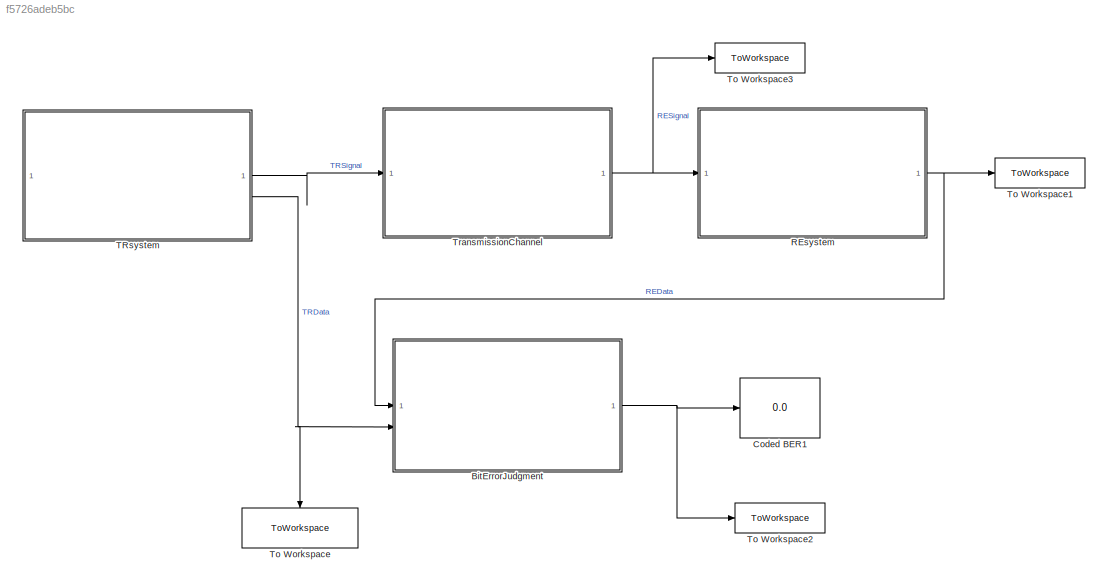
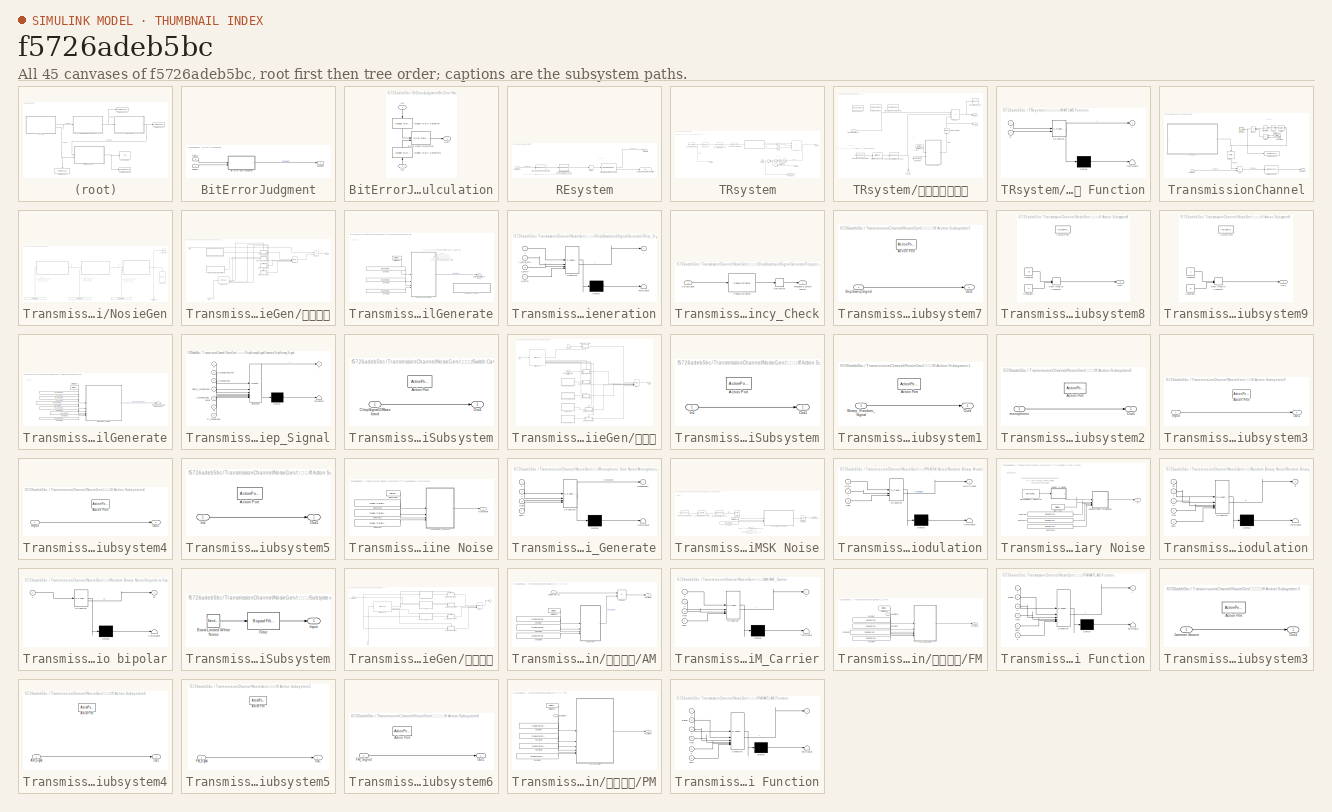
[diagram: thumbnail index - all 45 canvases of the model, root first then tree order]
MODEL slx_f5726adeb5bc
KIND model
CONFIG AbsTol = auto
CONFIG EnableMultiTasking = off
CONFIG FixedStep = auto
CONFIG InitFcn = Parameter_Initialize_1
CONFIG MaxStep = auto
CONFIG MinStep = auto
CONFIG RelTol = 1e-3
CONFIG SampleTimeConstraint = Unconstrained
CONFIG SolverName = VariableStepAuto
CONFIG StartTime = 0.0
CONFIG StopTime = 0.001
BLOCK [SubSystem] BitErrorJudgment
BLOCK [SubSystem] BitErrorJudgment/Bit Error Rate Calculation
BLOCK [Reference] BitErrorJudgment/Bit Error Rate Calculation/Error Rate Calculation  REF=commsink2/Error Rate
Calculation
  SourceBlock = commsink2/Error Rate\nCalculation
  SourceType = Error Rate Calculation
BLOCK [Inport] BitErrorJudgment/Bit Error Rate Calculation/In1
  NameLocation = right
BLOCK [Inport] BitErrorJudgment/Bit Error Rate Calculation/In2
  NameLocation = right
  Port = 2
BLOCK [Reference] BitErrorJudgment/Bit Error Rate Calculation/Integer to Bit Converter  REF=simulink/Logic and Bit
Operations/Integer to Bit
Converter
  LibrarySourceBlock = commutil2/Integer to Bit\nConverter
  NameLocation = right
  SourceBlock = simulink/Logic and Bit\nOperations/Integer to Bit\nConverter
  SourceType = Integer to Bit Converter
BLOCK [Reference] BitErrorJudgment/Bit Error Rate Calculation/Integer to Bit Converter1  REF=simulink/Logic and Bit
Operations/Integer to Bit
Converter
  LibrarySourceBlock = commutil2/Integer to Bit\nConverter
  NameLocation = right
  SourceBlock = simulink/Logic and Bit\nOperations/Integer to Bit\nConverter
  SourceType = Integer to Bit Converter
BLOCK [Outport] BitErrorJudgment/Bit Error Rate Calculation/Out1
  VectorParamsAs1DForOutWhenUnconnected = off
BLOCK [Outport] BitErrorJudgment/CodeBER
BLOCK [Inport] BitErrorJudgment/REData
BLOCK [Inport] BitErrorJudgment/TRData
  Port = 2
BLOCK [Display] Coded BER1
  Decimation = 1
BLOCK [SubSystem] REsystem
BLOCK [Delay] REsystem/Delay
  DelayLength = model.Parameters.RE.Delay.Sample_length
  InitialCondition = 0
  InputPortMap = u0
  InputProcessing = Columns as channels (frame based)
BLOCK [Reference] REsystem/Integer-Output RS Decoder1  REF=commblkcod2/Integer-Output
RS Decoder
  SourceBlock = commblkcod2/Integer-Output\nRS Decoder
  SourceType = Integer-Output RS Decoder
BLOCK [Outport] REsystem/REData
BLOCK [Inport] REsystem/RESignal
BLOCK [Reference] REsystem/Raised Cosine Receive Filter  REF=commfilt2/Raised Cosine
Receive Filter
  SourceBlock = commfilt2/Raised Cosine\nReceive Filter
  SourceType = Raised Cosine Receive Filter
BLOCK [Reference] REsystem/Rectangular QAM Demodulator Baseband  REF=commdigbbndam3/Rectangular QAM
Demodulator
Baseband
  SourceBlock = commdigbbndam3/Rectangular QAM\nDemodulator\nBaseband
  SourceType = Rectangular QAM Demodulator Baseband
BLOCK [Display] REsystem/Total Number of Corrected Errors
  Decimation = 1
  NameLocation = top
BLOCK [SubSystem] TRsystem
BLOCK [Sum] TRsystem/Add1
  IconShape = rectangular
  NameLocation = top
BLOCK [Buffer] TRsystem/Buffer7
  N = 1
  NameLocation = top
  OutputFrames = off
BLOCK [Math] TRsystem/Conj
  Operator = conj
BLOCK [Math] TRsystem/Conj1
  Operator = conj
BLOCK [Constant] TRsystem/Constant1
  NameLocation = top
  SampleTime = model.Parameters.TR.system_frame_speed
  Value = eps
BLOCK [DigitalClock] TRsystem/Digital Clock1
  NameLocation = top
  SampleTime = model.Parameters.TR.system_frame_speed
BLOCK [Product] TRsystem/Divide1
  Inputs = */
  NameLocation = top
BLOCK [Integrator] TRsystem/Integrator1
  NameLocation = top
BLOCK [Outport] TRsystem/Output
  Port = 2
BLOCK [Math] TRsystem/Power1
  NameLocation = top
  Operator = magnitude^2
BLOCK [Product] TRsystem/Product
  Inputs = 3
BLOCK [Reference] TRsystem/RS Encoder  REF=commblkcod2/Integer-Input
RS Encoder
  SourceBlock = commblkcod2/Integer-Input\nRS Encoder
  SourceType = Integer-Input RS Encoder
BLOCK [Reference] TRsystem/Raised Cosine Transmit Filter  REF=commfilt2/Raised Cosine
Transmit Filter
  SourceBlock = commfilt2/Raised Cosine\nTransmit Filter
  SourceType = Raised Cosine Transmit Filter
BLOCK [Reference] TRsystem/Random Integer Generator  REF=commrandsrc3/Random Integer
Generator
  SourceBlock = commrandsrc3/Random Integer\nGenerator
  SourceType = Random Integer Generator
BLOCK [Reference] TRsystem/Rectangular QAM Modulator Baseband  REF=commdigbbndam3/Rectangular QAM
Modulator
Baseband
  LibrarySourceBlock = commhdldigbbndam/Rectangular QAM\nModulator\nBaseband
  SourceBlock = commdigbbndam3/Rectangular QAM\nModulator\nBaseband
  SourceType = Rectangular QAM Modulator Baseband
BLOCK [Scope] TRsystem/Scope1
  Floating = off
  NameLocation = top
  NumInputPorts = 1
  ScopeSpecificationString = Simulink.scopes.TimeScopeBlockCfg('CurrentConfiguration', extmgr.ConfigurationSet(extmgr.Configuration('Core','General UI',true),extmgr.Configuration('Core','Source UI',true),extmgr.Configuration('Sources','WiredSimulink',true,'DataLoggingVariableName','ScopeData1'),extmgr.Configuration('Visuals','Time Domain',true,'SerializedDisplays',{struct('MinYLimReal','-0.00021','MaxYLimReal','0.00185','YLab...<+1395ch>
BLOCK [Outport] TRsystem/TRSignal
BLOCK [ToWorkspace] TRsystem/To Workspace
  FixptAsFi = on
  MaxDataPoints = inf
  SampleTime = -1
  SaveFormat = Timeseries
  VariableName = PowerEstimation
BLOCK [SubSystem] TRsystem/跳频和频谱搬移
BLOCK [Reference] TRsystem/跳频和频谱搬移/Baseband PLL  REF=commsynccomp2/Baseband
PLL
  Commented = on
  SourceBlock = commsynccomp2/Baseband\nPLL
  SourceType = Baseband PLL
BLOCK [Reference] TRsystem/跳频和频谱搬移/Bit to Integer Converter  REF=simulink/Logic and Bit
Operations/Bit to Integer
Converter
  SourceBlock = simulink/Logic and Bit\nOperations/Bit to Integer\nConverter
  SourceType = Bit to Integer Converter
BLOCK [Reference] TRsystem/跳频和频谱搬移/Charge Pump PLL  REF=commsynccomp2/Charge Pump
PLL
  Commented = on
  SourceBlock = commsynccomp2/Charge Pump\nPLL
  SourceType = Charge Pump PLL
BLOCK [Constant] TRsystem/跳频和频谱搬移/Constant
  Value = model.Parameters.TR.Constant.fc
BLOCK [DigitalClock] TRsystem/跳频和频谱搬移/Digital Clock
  SampleTime = model.Parameters.TR.Digital_Clock.fc_Ts
BLOCK [Reference] TRsystem/跳频和频谱搬移/Linearized Baseband PLL  REF=commsynccomp2/Linearized Baseband
PLL
  Commented = on
  SourceBlock = commsynccomp2/Linearized Baseband\nPLL
  SourceType = Linearized Baseband PLL
BLOCK [Reference] TRsystem/跳频和频谱搬移/M-FSK Modulator Baseband1  REF=commdigbbndfm2/M-FSK
Modulator
Baseband
  SourceBlock = commdigbbndfm2/M-FSK\nModulator\nBaseband
  SourceType = M-FSK Modulator Baseband
  UserDataPersistent = on
BLOCK [SubSystem] TRsystem/跳频和频谱搬移/MATLAB Function
  ErrorFcn = Stateflow.Translate.translate
  LibrarySourceBlock = simulink/User-Defined\nFunctions/MATLAB Function
  PermitHierarchicalResolution = ExplicitOnly
  SFBlockType = MATLAB Function
  TreatAsAtomicUnit = on
BLOCK [Demux] TRsystem/跳频和频谱搬移/MATLAB Function/ Demux 
  Outputs = 1
BLOCK [S-Function] TRsystem/跳频和频谱搬移/MATLAB Function/ SFunction 
  EnableBusSupport = on
  FunctionName = sf_sfun
  PortCounts = [2 2]
  SFcnIsStateOwnerBlock = off
  SFunctionDeploymentMode = off
  Tag = Stateflow S-Function 1
BLOCK [Terminator] TRsystem/跳频和频谱搬移/MATLAB Function/ Terminator 
BLOCK [Inport] TRsystem/跳频和频谱搬移/MATLAB Function/fc
  Port = 2
BLOCK [Inport] TRsystem/跳频和频谱搬移/MATLAB Function/t
BLOCK [Outport] TRsystem/跳频和频谱搬移/MATLAB Function/y
BLOCK [Inport] TRsystem/跳频和频谱搬移/Modulated Signal
BLOCK [Reference] TRsystem/跳频和频谱搬移/PN Sequence Generator1  REF=commseqgen3/PN Sequence
Generator
  SourceBlock = commseqgen3/PN Sequence\nGenerator
  SourceType = PN Sequence Generator
BLOCK [Outport] TRsystem/跳频和频谱搬移/PN_Out
  NameLocation = left
  Port = 2
BLOCK [Outport] TRsystem/跳频和频谱搬移/PN_Out1
  Port = 3
BLOCK [Product] TRsystem/跳频和频谱搬移/Product
  Inputs = 3
BLOCK [Outport] TRsystem/跳频和频谱搬移/RF Signal
BLOCK [RateTransition] TRsystem/跳频和频谱搬移/Rate Transition1
  NameLocation = right
BLOCK [SpectrumAnalyzer] TRsystem/跳频和频谱搬移/Spectrum Analyzer
  Commented = on
  ScopeSpecificationString = spbscopes.SpectrumAnalyzerBlockCfg('CurrentConfiguration', extmgr.ConfigurationSet(extmgr.Configuration('Core','General UI',true),extmgr.Configuration('Core','Source UI',true),extmgr.Configuration('Sources','WiredSimulink',true),extmgr.Configuration('Visuals','Spectrum',true,'AxesProperties',struct('Color',{[0 0 0],[0 0 0]},'XColor',{[0.686274509803922 0.686274509803922 0.686274509803922],[0.68627...<+3361ch>
BLOCK [ToWorkspace] To Workspace
  FixptAsFi = on
  MaxDataPoints = inf
  NameLocation = left
  SampleTime = -1
  SaveFormat = Timeseries
  VariableName = TRData
BLOCK [ToWorkspace] To Workspace1
  FixptAsFi = on
  MaxDataPoints = inf
  SampleTime = -1
  SaveFormat = Timeseries
  VariableName = REData
BLOCK [ToWorkspace] To Workspace2
  FixptAsFi = on
  MaxDataPoints = inf
  SampleTime = -1
  SaveFormat = Timeseries
  VariableName = CodeBER
BLOCK [ToWorkspace] To Workspace3
  FixptAsFi = on
  MaxDataPoints = inf
  SampleTime = -1
  SaveFormat = Timeseries
  VariableName = RESignal
BLOCK [SubSystem] TransmissionChannel
BLOCK [Reference] TransmissionChannel/AWGN Channel  REF=commchan3/AWGN
Channel
  SourceBlock = commchan3/AWGN\nChannel
  SourceType = AWGN Channel
  UserDataPersistent = on
BLOCK [Sum] TransmissionChannel/Add
  IconShape = rectangular
BLOCK [Sum] TransmissionChannel/Add1
  IconShape = rectangular
  NameLocation = top
BLOCK [Buffer] TransmissionChannel/Buffer
  N = model.Parameters.TR.rolloff_later_data_length
  NameLocation = left
  OutputFrames = off
BLOCK [Buffer] TransmissionChannel/Buffer7
  N = 1
  NameLocation = top
  OutputFrames = off
BLOCK [Constant] TransmissionChannel/Constant1
  NameLocation = top
  SampleTime = model.Parameters.TR.system_frame_speed
  Value = eps
BLOCK [DigitalClock] TransmissionChannel/Digital Clock1
  NameLocation = top
  SampleTime = model.Parameters.NoiseGen.NoiseTs
BLOCK [Product] TransmissionChannel/Divide1
  Inputs = */
  NameLocation = top
BLOCK [Integrator] TransmissionChannel/Integrator1
  NameLocation = top
BLOCK [SubSystem] TransmissionChannel/NosieGen
BLOCK [Outport] TransmissionChannel/NosieGen/Jamming_Signal_Output
  NameLocation = top
BLOCK [SpectrumAnalyzer] TransmissionChannel/NosieGen/Spectrum Analyzer
  Commented = on
  NameLocation = right
  ScopeSpecificationString = spbscopes.SpectrumAnalyzerBlockCfg('CurrentConfiguration', extmgr.ConfigurationSet(extmgr.Configuration('Core','General UI',true),extmgr.Configuration('Core','Source UI',true),extmgr.Configuration('Sources','WiredSimulink',true),extmgr.Configuration('Visuals','Spectrum',true,'AxesProperties',struct('Color',{[0 0 0],[0 0 0]},'XColor',{[0.686274509803922 0.686274509803922 0.686274509803922],[0.68627...<+1973ch>
BLOCK [ToWorkspace] TransmissionChannel/NosieGen/To Workspace
  FixptAsFi = on
  MaxDataPoints = inf
  NameLocation = left
  SampleTime = -1
  SaveFormat = Timeseries
  VariableName = Noise
BLOCK [SubSystem] TransmissionChannel/NosieGen/干扰方式
BLOCK [SubSystem] TransmissionChannel/NosieGen/干扰方式/ChirpBasebandSignalGenerate
  AttributesFormatString = 线性调频模块：线性调频公式(y=exp(2*pi*(f_min*t+0.5*k_chirp*t^2)))\n输入参数：\n1. f_min,为线性调频信号的起始频率\n2.f_max为线性调频信号的终止频率\n3.T_chirp为线性调频信号的调频时间\n斜率k_sweep = (f_min-f_max)/T_chirp
BLOCK [Outport] TransmissionChannel/NosieGen/干扰方式/ChirpBasebandSignalGenerate/ChirpSignalOfBaseband
BLOCK [SubSystem] TransmissionChannel/NosieGen/干扰方式/ChirpBasebandSignalGenerate/Chirp_Signal_Generation
  ErrorFcn = Stateflow.Translate.translate
  LibrarySourceBlock = simulink/User-Defined\nFunctions/MATLAB Function
  PermitHierarchicalResolution = ExplicitOnly
  SFBlockType = MATLAB Function
  TreatAsAtomicUnit = on
BLOCK [Demux] TransmissionChannel/NosieGen/干扰方式/ChirpBasebandSignalGenerate/Chirp_Signal_Generation/ Demux 
  Outputs = 1
BLOCK [S-Function] TransmissionChannel/NosieGen/干扰方式/ChirpBasebandSignalGenerate/Chirp_Signal_Generation/ SFunction 
  EnableBusSupport = on
  FunctionName = sf_sfun
  PortCounts = [4 2]
  SFcnIsStateOwnerBlock = off
  SFunctionDeploymentMode = off
  Tag = Stateflow S-Function 2
BLOCK [Terminator] TransmissionChannel/NosieGen/干扰方式/ChirpBasebandSignalGenerate/Chirp_Signal_Generation/ Terminator 
BLOCK [Inport] TransmissionChannel/NosieGen/干扰方式/ChirpBasebandSignalGenerate/Chirp_Signal_Generation/T_chirp
  Port = 3
BLOCK [Inport] TransmissionChannel/NosieGen/干扰方式/ChirpBasebandSignalGenerate/Chirp_Signal_Generation/f_chirp_min
  Port = 2
BLOCK [Inport] TransmissionChannel/NosieGen/干扰方式/ChirpBasebandSignalGenerate/Chirp_Signal_Generation/k_chirp
  Port = 4
BLOCK [Inport] TransmissionChannel/NosieGen/干扰方式/ChirpBasebandSignalGenerate/Chirp_Signal_Generation/t
BLOCK [Outport] TransmissionChannel/NosieGen/干扰方式/ChirpBasebandSignalGenerate/Chirp_Signal_Generation/y
BLOCK [Constant] TransmissionChannel/NosieGen/干扰方式/ChirpBasebandSignalGenerate/Constant
  Value = model.Parameters.NoiseGen.Jamming.LinearSweepFmin
BLOCK [Constant] TransmissionChannel/NosieGen/干扰方式/ChirpBasebandSignalGenerate/Constant1
  Value = model.Parameters.NoiseGen.Jamming.LinearSweepT
BLOCK [Constant] TransmissionChannel/NosieGen/干扰方式/ChirpBasebandSignalGenerate/Constant2
  Value = model.Parameters.NoiseGen.Jamming.LinearSweepK
BLOCK [DigitalClock] TransmissionChannel/NosieGen/干扰方式/ChirpBasebandSignalGenerate/Digital Clock
  SampleTime = model.Parameters.NoiseGen.NoiseTs
BLOCK [SubSystem] TransmissionChannel/NosieGen/干扰方式/ChirpBasebandSignalGenerate/Frequency_Check
  Commented = on
BLOCK [Inport] TransmissionChannel/NosieGen/干扰方式/ChirpBasebandSignalGenerate/Frequency_Check/ChirpSignal
BLOCK [Derivative] TransmissionChannel/NosieGen/干扰方式/ChirpBasebandSignalGenerate/Frequency_Check/Derivative
BLOCK [Outport] TransmissionChannel/NosieGen/干扰方式/ChirpBasebandSignalGenerate/Frequency_Check/FrequencyConversionLine
BLOCK [Reference] TransmissionChannel/NosieGen/干扰方式/ChirpBasebandSignalGenerate/Frequency_Check/Phase Extractor  REF=dspsigops/Phase Extractor
  SourceBlock = dspsigops/Phase Extractor
  SourceType = dsp.simulink.PhaseExtractor
BLOCK [SubSystem] TransmissionChannel/NosieGen/干扰方式/If Action Subsystem7
  TreatAsAtomicUnit = on
BLOCK [ActionPort] TransmissionChannel/NosieGen/干扰方式/If Action Subsystem7/Action Port
  ActionPortLabel = case [ 2 ]:
BLOCK [Outport] TransmissionChannel/NosieGen/干扰方式/If Action Subsystem7/Out1
BLOCK [Inport] TransmissionChannel/NosieGen/干扰方式/If Action Subsystem7/StepSweepSignal
BLOCK [SubSystem] TransmissionChannel/NosieGen/干扰方式/If Action Subsystem8
  TreatAsAtomicUnit = on
BLOCK [ActionPort] TransmissionChannel/NosieGen/干扰方式/If Action Subsystem8/Action Port
  ActionPortLabel = case [ 3 ]:
BLOCK [Constant] TransmissionChannel/NosieGen/干扰方式/If Action Subsystem8/Constant
  Value = 10
BLOCK [Constant] TransmissionChannel/NosieGen/干扰方式/If Action Subsystem8/Constant1
  Value = 0
BLOCK [Outport] TransmissionChannel/NosieGen/干扰方式/If Action Subsystem8/Out1
BLOCK [RealImagToComplex] TransmissionChannel/NosieGen/干扰方式/If Action Subsystem8/Real-Imag to Complex
BLOCK [SubSystem] TransmissionChannel/NosieGen/干扰方式/If Action Subsystem9
  TreatAsAtomicUnit = on
BLOCK [ActionPort] TransmissionChannel/NosieGen/干扰方式/If Action Subsystem9/Action Port
  ActionPortLabel = default:
BLOCK [Constant] TransmissionChannel/NosieGen/干扰方式/If Action Subsystem9/Constant
BLOCK [Constant] TransmissionChannel/NosieGen/干扰方式/If Action Subsystem9/Constant1
  Value = 0
BLOCK [Outport] TransmissionChannel/NosieGen/干扰方式/If Action Subsystem9/Out1
BLOCK [RealImagToComplex] TransmissionChannel/NosieGen/干扰方式/If Action Subsystem9/Real-Imag to Complex
BLOCK [Inport] TransmissionChannel/NosieGen/干扰方式/In1
BLOCK [Inport] TransmissionChannel/NosieGen/干扰方式/In2
  Port = 2
BLOCK [Merge] TransmissionChannel/NosieGen/干扰方式/Merge2
  Inputs = 4
BLOCK [Outport] TransmissionChannel/NosieGen/干扰方式/Out1
BLOCK [Product] TransmissionChannel/NosieGen/干扰方式/Product
BLOCK [SubSystem] TransmissionChannel/NosieGen/干扰方式/StepSweepSignalGenerate
BLOCK [Constant] TransmissionChannel/NosieGen/干扰方式/StepSweepSignalGenerate/Constant
  Value = model.Parameters.NoiseGen.NoiseTs
BLOCK [Constant] TransmissionChannel/NosieGen/干扰方式/StepSweepSignalGenerate/Constant1
  Value = model.Parameters.NoiseGen.Jamming.LinearSweepFmin
BLOCK [Constant] TransmissionChannel/NosieGen/干扰方式/StepSweepSignalGenerate/Constant2
  Value = model.Parameters.NoiseGen.Jamming.StepSweepT
BLOCK [Constant] TransmissionChannel/NosieGen/干扰方式/StepSweepSignalGenerate/Constant3
  Value = model.Parameters.NoiseGen.Jamming.StepSweepDeltaFstep
BLOCK [Constant] TransmissionChannel/NosieGen/干扰方式/StepSweepSignalGenerate/Constant4
  Value = model.Parameters.NoiseGen.Jamming.StepSweepTDwell
BLOCK [Constant] TransmissionChannel/NosieGen/干扰方式/StepSweepSignalGenerate/Constant5
  Value = model.Parameters.NoiseGen.Jamming.StepSweepN
BLOCK [DigitalClock] TransmissionChannel/NosieGen/干扰方式/StepSweepSignalGenerate/Digital Clock
  SampleTime = model.Parameters.NoiseGen.NoiseTs
BLOCK [Outport] TransmissionChannel/NosieGen/干扰方式/StepSweepSignalGenerate/StepSweepSignalOfBaseband
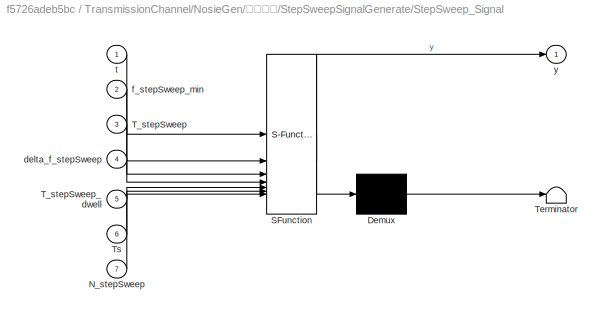
BLOCK [SubSystem] TransmissionChannel/NosieGen/干扰方式/StepSweepSignalGenerate/StepSweep_Signal
  ErrorFcn = Stateflow.Translate.translate
  LibrarySourceBlock = simulink/User-Defined\nFunctions/MATLAB Function
  PermitHierarchicalResolution = ExplicitOnly
  SFBlockType = MATLAB Function
  TreatAsAtomicUnit = on
BLOCK [Demux] TransmissionChannel/NosieGen/干扰方式/StepSweepSignalGenerate/StepSweep_Signal/ Demux 
  Outputs = 1
BLOCK [S-Function] TransmissionChannel/NosieGen/干扰方式/StepSweepSignalGenerate/StepSweep_Signal/ SFunction 
  EnableBusSupport = on
  FunctionName = sf_sfun
  PortCounts = [7 2]
  SFcnIsStateOwnerBlock = off
  SFunctionDeploymentMode = off
  Tag = Stateflow S-Function 8
BLOCK [Terminator] TransmissionChannel/NosieGen/干扰方式/StepSweepSignalGenerate/StepSweep_Signal/ Terminator 
BLOCK [Inport] TransmissionChannel/NosieGen/干扰方式/StepSweepSignalGenerate/StepSweep_Signal/N_stepSweep
  Port = 7
BLOCK [Inport] TransmissionChannel/NosieGen/干扰方式/StepSweepSignalGenerate/StepSweep_Signal/T_stepSweep
  Port = 3
BLOCK [Inport] TransmissionChannel/NosieGen/干扰方式/StepSweepSignalGenerate/StepSweep_Signal/T_stepSweep_dwell
  Port = 5
BLOCK [Inport] TransmissionChannel/NosieGen/干扰方式/StepSweepSignalGenerate/StepSweep_Signal/Ts
  Port = 6
BLOCK [Inport] TransmissionChannel/NosieGen/干扰方式/StepSweepSignalGenerate/StepSweep_Signal/delta_f_stepSweep
  Port = 4
BLOCK [Inport] TransmissionChannel/NosieGen/干扰方式/StepSweepSignalGenerate/StepSweep_Signal/f_stepSweep_min
  Port = 2
BLOCK [Inport] TransmissionChannel/NosieGen/干扰方式/StepSweepSignalGenerate/StepSweep_Signal/t
BLOCK [Outport] TransmissionChannel/NosieGen/干扰方式/StepSweepSignalGenerate/StepSweep_Signal/y
BLOCK [SubSystem] TransmissionChannel/NosieGen/干扰方式/Switch Case Action Subsystem
  TreatAsAtomicUnit = on
BLOCK [ActionPort] TransmissionChannel/NosieGen/干扰方式/Switch Case Action Subsystem/Action Port
  ActionPortLabel = case [ 1 ]:
BLOCK [Inport] TransmissionChannel/NosieGen/干扰方式/Switch Case Action Subsystem/ChirpSignalOfBaseband
BLOCK [Outport] TransmissionChannel/NosieGen/干扰方式/Switch Case Action Subsystem/Out1
BLOCK [SwitchCase] TransmissionChannel/NosieGen/干扰方式/Switch Case2
  CaseConditions = {1,2,3}
BLOCK [Constant] TransmissionChannel/NosieGen/干扰方式控制位
  NameLocation = right
  SampleTime = Inf
  Value = model.Parameters.NoiseGen.Control.Jamming
BLOCK [SubSystem] TransmissionChannel/NosieGen/干扰源
BLOCK [Reference] TransmissionChannel/NosieGen/干扰源/Band-Limited White Noise  REF=simulink/Sources/Band-Limited
White Noise
  SourceBlock = simulink/Sources/Band-Limited\nWhite Noise
  SourceType = Band-Limited White Noise.
BLOCK [Constant] TransmissionChannel/NosieGen/干扰源/Constant
  SampleTime = model.Parameters.NoiseGen.NoiseTs
  Value = 0
BLOCK [SubSystem] TransmissionChannel/NosieGen/干扰源/If Action Subsystem
  TreatAsAtomicUnit = on
BLOCK [ActionPort] TransmissionChannel/NosieGen/干扰源/If Action Subsystem/Action Port
  ActionPortLabel = case [ 1 ]:
BLOCK [Inport] TransmissionChannel/NosieGen/干扰源/If Action Subsystem/In1
BLOCK [Outport] TransmissionChannel/NosieGen/干扰源/If Action Subsystem/Out1
BLOCK [SubSystem] TransmissionChannel/NosieGen/干扰源/If Action Subsystem1
  TreatAsAtomicUnit = on
BLOCK [ActionPort] TransmissionChannel/NosieGen/干扰源/If Action Subsystem1/Action Port
  ActionPortLabel = case [ 2 ]:
BLOCK [Inport] TransmissionChannel/NosieGen/干扰源/If Action Subsystem1/Binary_Random_Signal
BLOCK [Outport] TransmissionChannel/NosieGen/干扰源/If Action Subsystem1/Out1
BLOCK [SubSystem] TransmissionChannel/NosieGen/干扰源/If Action Subsystem2
  TreatAsAtomicUnit = on
BLOCK [ActionPort] TransmissionChannel/NosieGen/干扰源/If Action Subsystem2/Action Port
  ActionPortLabel = case [ 3 ]:
BLOCK [Outport] TransmissionChannel/NosieGen/干扰源/If Action Subsystem2/Out1
BLOCK [Inport] TransmissionChannel/NosieGen/干扰源/If Action Subsystem2/monophonic
BLOCK [SubSystem] TransmissionChannel/NosieGen/干扰源/If Action Subsystem3
  TreatAsAtomicUnit = on
BLOCK [ActionPort] TransmissionChannel/NosieGen/干扰源/If Action Subsystem3/Action Port
  ActionPortLabel = case [ 4 ]:
BLOCK [Inport] TransmissionChannel/NosieGen/干扰源/If Action Subsystem3/Input
BLOCK [Outport] TransmissionChannel/NosieGen/干扰源/If Action Subsystem3/Out1
BLOCK [SubSystem] TransmissionChannel/NosieGen/干扰源/If Action Subsystem4
  TreatAsAtomicUnit = on
BLOCK [ActionPort] TransmissionChannel/NosieGen/干扰源/If Action Subsystem4/Action Port
  ActionPortLabel = case [ 5 ]:
BLOCK [Inport] TransmissionChannel/NosieGen/干扰源/If Action Subsystem4/Input
BLOCK [Outport] TransmissionChannel/NosieGen/干扰源/If Action Subsystem4/Out1
BLOCK [SubSystem] TransmissionChannel/NosieGen/干扰源/If Action Subsystem5
  TreatAsAtomicUnit = on
BLOCK [ActionPort] TransmissionChannel/NosieGen/干扰源/If Action Subsystem5/Action Port
  ActionPortLabel = case [ 0 ]:
BLOCK [Inport] TransmissionChannel/NosieGen/干扰源/If Action Subsystem5/In1
BLOCK [Outport] TransmissionChannel/NosieGen/干扰源/If Action Subsystem5/Out1
BLOCK [Inport] TransmissionChannel/NosieGen/干扰源/In1
BLOCK [Merge] TransmissionChannel/NosieGen/干扰源/Merge
  Inputs = 6
BLOCK [SubSystem] TransmissionChannel/NosieGen/干扰源/Monophonic Sine Noise
BLOCK [Constant] TransmissionChannel/NosieGen/干扰源/Monophonic Sine Noise/Constant
  Value = model.Parameters.NoiseGen.SineNoisePhi0
BLOCK [Constant] TransmissionChannel/NosieGen/干扰源/Monophonic Sine Noise/Constant1
  Value = model.Parameters.NoiseGen.SineNoiseF
BLOCK [Constant] TransmissionChannel/NosieGen/干扰源/Monophonic Sine Noise/Constant2
  Value = model.Parameters.NoiseGen.SineNoiseA
BLOCK [DigitalClock] TransmissionChannel/NosieGen/干扰源/Monophonic Sine Noise/Digital Clock
  SampleTime = model.Parameters.NoiseGen.NoiseTs
BLOCK [SubSystem] TransmissionChannel/NosieGen/干扰源/Monophonic Sine Noise/Monophonic_Generate
  ErrorFcn = Stateflow.Translate.translate
  LibrarySourceBlock = simulink/User-Defined\nFunctions/MATLAB Function
  PermitHierarchicalResolution = ExplicitOnly
  SFBlockType = MATLAB Function
  TreatAsAtomicUnit = on
BLOCK [Demux] TransmissionChannel/NosieGen/干扰源/Monophonic Sine Noise/Monophonic_Generate/ Demux 
  Outputs = 1
BLOCK [S-Function] TransmissionChannel/NosieGen/干扰源/Monophonic Sine Noise/Monophonic_Generate/ SFunction 
  EnableBusSupport = on
  FunctionName = sf_sfun
  PortCounts = [4 2]
  SFcnIsStateOwnerBlock = off
  SFunctionDeploymentMode = off
  Tag = Stateflow S-Function 3
BLOCK [Terminator] TransmissionChannel/NosieGen/干扰源/Monophonic Sine Noise/Monophonic_Generate/ Terminator 
BLOCK [Inport] TransmissionChannel/NosieGen/干扰源/Monophonic Sine Noise/Monophonic_Generate/A
  Port = 2
BLOCK [Inport] TransmissionChannel/NosieGen/干扰源/Monophonic Sine Noise/Monophonic_Generate/freq
  Port = 3
BLOCK [Outport] TransmissionChannel/NosieGen/干扰源/Monophonic Sine Noise/Monophonic_Generate/monophonic
BLOCK [Inport] TransmissionChannel/NosieGen/干扰源/Monophonic Sine Noise/Monophonic_Generate/phi0
  Port = 4
BLOCK [Inport] TransmissionChannel/NosieGen/干扰源/Monophonic Sine Noise/Monophonic_Generate/t
BLOCK [Outport] TransmissionChannel/NosieGen/干扰源/Monophonic Sine Noise/monophonic
BLOCK [Outport] TransmissionChannel/NosieGen/干扰源/Out1
BLOCK [SubSystem] TransmissionChannel/NosieGen/干扰源/PN MSK Noise
BLOCK [Buffer] TransmissionChannel/NosieGen/干扰源/PN MSK Noise/Buffer
  N = 1
  OutputFrames = off
BLOCK [ComplexToRealImag] TransmissionChannel/NosieGen/干扰源/PN MSK Noise/Complex to Real-Imag
BLOCK [Constant] TransmissionChannel/NosieGen/干扰源/PN MSK Noise/Constant
  Value = model.Parameters.NoiseGen.PNMSKF
BLOCK [DigitalClock] TransmissionChannel/NosieGen/干扰源/PN MSK Noise/Digital Clock
  SampleTime = model.Parameters.NoiseGen.NoiseTs
BLOCK [Reference] TransmissionChannel/NosieGen/干扰源/PN MSK Noise/MSK Modulator Baseband  REF=commdigbbndcpm2/MSK
Modulator
Baseband
  SourceBlock = commdigbbndcpm2/MSK\nModulator\nBaseband
  SourceType = MSK Modulator Baseband
  UserDataPersistent = on
BLOCK [Outport] TransmissionChannel/NosieGen/干扰源/PN MSK Noise/MSKSignal
  OutDataTypeStr = double
BLOCK [Reference] TransmissionChannel/NosieGen/干扰源/PN MSK Noise/PN Sequence Generator  REF=commseqgen3/PN Sequence
Generator
  LibrarySourceBlock = commhdlsource/PN Sequence\nGenerator
  SourceBlock = commseqgen3/PN Sequence\nGenerator
  SourceType = PN Sequence Generator
BLOCK [SubSystem] TransmissionChannel/NosieGen/干扰源/PN MSK Noise/Random Binary Modulation
  ErrorFcn = Stateflow.Translate.translate
  LibrarySourceBlock = simulink/User-Defined\nFunctions/MATLAB Function
  PermitHierarchicalResolution = ExplicitOnly
  SFBlockType = MATLAB Function
  TreatAsAtomicUnit = on
BLOCK [Demux] TransmissionChannel/NosieGen/干扰源/PN MSK Noise/Random Binary Modulation/ Demux 
  Outputs = 1
BLOCK [S-Function] TransmissionChannel/NosieGen/干扰源/PN MSK Noise/Random Binary Modulation/ SFunction 
  EnableBusSupport = on
  FunctionName = sf_sfun
  PortCounts = [3 2]
  SFcnIsStateOwnerBlock = off
  SFunctionDeploymentMode = off
  Tag = Stateflow S-Function 9
BLOCK [Terminator] TransmissionChannel/NosieGen/干扰源/PN MSK Noise/Random Binary Modulation/ Terminator 
BLOCK [Outport] TransmissionChannel/NosieGen/干扰源/PN MSK Noise/Random Binary Modulation/MSKSignal
BLOCK [Inport] TransmissionChannel/NosieGen/干扰源/PN MSK Noise/Random Binary Modulation/cita_k
BLOCK [Inport] TransmissionChannel/NosieGen/干扰源/PN MSK Noise/Random Binary Modulation/freq
  Port = 3
BLOCK [Inport] TransmissionChannel/NosieGen/干扰源/PN MSK Noise/Random Binary Modulation/t
  Port = 2
BLOCK [Reference] TransmissionChannel/NosieGen/干扰源/PN MSK Noise/Unipolar to Bipolar Converter1  REF=commutil2/Unipolar to
Bipolar
Converter
  SourceBlock = commutil2/Unipolar to\nBipolar\nConverter
  SourceType = Unipolar to Bipolar Converter
BLOCK [SubSystem] TransmissionChannel/NosieGen/干扰源/Random Binary Noise
BLOCK [Reference] TransmissionChannel/NosieGen/干扰源/Random Binary Noise/Bernoulli Binary Generator  REF=commrandsrc3/Bernoulli Binary
Generator
  SourceBlock = commrandsrc3/Bernoulli Binary\nGenerator
  SourceType = Bernoulli Binary Generator
BLOCK [Constant] TransmissionChannel/NosieGen/干扰源/Random Binary Noise/Constant
  Value = model.Parameters.NoiseGen.RandBPFA
BLOCK [Constant] TransmissionChannel/NosieGen/干扰源/Random Binary Noise/Constant1
  Value = model.Parameters.NoiseGen.RandBPFF
BLOCK [Constant] TransmissionChannel/NosieGen/干扰源/Random Binary Noise/Constant2
  Value = model.Parameters.NoiseGen.RandBPFPhi0
BLOCK [DigitalClock] TransmissionChannel/NosieGen/干扰源/Random Binary Noise/Digital Clock
  SampleTime = model.Parameters.NoiseGen.NoiseTs
BLOCK [Outport] TransmissionChannel/NosieGen/干扰源/Random Binary Noise/Jt
BLOCK [SubSystem] TransmissionChannel/NosieGen/干扰源/Random Binary Noise/Random Binary Modulation
  ErrorFcn = Stateflow.Translate.translate
  LibrarySourceBlock = simulink/User-Defined\nFunctions/MATLAB Function
  PermitHierarchicalResolution = ExplicitOnly
  SFBlockType = MATLAB Function
  TreatAsAtomicUnit = on
BLOCK [Demux] TransmissionChannel/NosieGen/干扰源/Random Binary Noise/Random Binary Modulation/ Demux 
  Outputs = 1
BLOCK [S-Function] TransmissionChannel/NosieGen/干扰源/Random Binary Noise/Random Binary Modulation/ SFunction 
  EnableBusSupport = on
  FunctionName = sf_sfun
  PortCounts = [5 2]
  SFcnIsStateOwnerBlock = off
  SFunctionDeploymentMode = off
  Tag = Stateflow S-Function 6
BLOCK [Terminator] TransmissionChannel/NosieGen/干扰源/Random Binary Noise/Random Binary Modulation/ Terminator 
BLOCK [Inport] TransmissionChannel/NosieGen/干扰源/Random Binary Noise/Random Binary Modulation/A
  Port = 3
BLOCK [Inport] TransmissionChannel/NosieGen/干扰源/Random Binary Noise/Random Binary Modulation/Jn
BLOCK [Outport] TransmissionChannel/NosieGen/干扰源/Random Binary Noise/Random Binary Modulation/Jt
BLOCK [Inport] TransmissionChannel/NosieGen/干扰源/Random Binary Noise/Random Binary Modulation/freq
  Port = 4
BLOCK [Inport] TransmissionChannel/NosieGen/干扰源/Random Binary Noise/Random Binary Modulation/phi0
  Port = 5
BLOCK [Inport] TransmissionChannel/NosieGen/干扰源/Random Binary Noise/Random Binary Modulation/t
  Port = 2
BLOCK [SubSystem] TransmissionChannel/NosieGen/干扰源/Random Binary Noise/Unipolar to bipolar
  ErrorFcn = Stateflow.Translate.translate
  LibrarySourceBlock = simulink/User-Defined\nFunctions/MATLAB Function
  PermitHierarchicalResolution = ExplicitOnly
  SFBlockType = MATLAB Function
  TreatAsAtomicUnit = on
BLOCK [Demux] TransmissionChannel/NosieGen/干扰源/Random Binary Noise/Unipolar to bipolar/ Demux 
  Outputs = 1
BLOCK [S-Function] TransmissionChannel/NosieGen/干扰源/Random Binary Noise/Unipolar to bipolar/ SFunction 
  EnableBusSupport = on
  FunctionName = sf_sfun
  PortCounts = [1 2]
  SFcnIsStateOwnerBlock = off
  SFunctionDeploymentMode = off
  Tag = Stateflow S-Function 7
BLOCK [Terminator] TransmissionChannel/NosieGen/干扰源/Random Binary Noise/Unipolar to bipolar/ Terminator 
BLOCK [Outport] TransmissionChannel/NosieGen/干扰源/Random Binary Noise/Unipolar to bipolar/Jn
BLOCK [Inport] TransmissionChannel/NosieGen/干扰源/Random Binary Noise/Unipolar to bipolar/u
BLOCK [SubSystem] TransmissionChannel/NosieGen/干扰源/Subsystem
BLOCK [Reference] TransmissionChannel/NosieGen/干扰源/Subsystem/Band-Limited White Noise  REF=simulink/Sources/Band-Limited
White Noise
  SourceBlock = simulink/Sources/Band-Limited\nWhite Noise
  SourceType = Band-Limited White Noise.
BLOCK [Reference] TransmissionChannel/NosieGen/干扰源/Subsystem/Filter  REF=dsparch4/Biquad Filter
  SourceBlock = dsparch4/Biquad Filter
  SourceType = Biquad Filter
  Tag = BlockMethodSubSystem
  UserDataPersistent = on
BLOCK [Outport] TransmissionChannel/NosieGen/干扰源/Subsystem/Input
BLOCK [SwitchCase] TransmissionChannel/NosieGen/干扰源/Switch Case
  CaseConditions = {0,1,2,3,4,5}
BLOCK [Constant] TransmissionChannel/NosieGen/干扰源控制位
  SampleTime = Inf
  Value = model.Parameters.NoiseGen.Control.Source
BLOCK [SubSystem] TransmissionChannel/NosieGen/调制方式
BLOCK [SubSystem] TransmissionChannel/NosieGen/调制方式/AM
BLOCK [SubSystem] TransmissionChannel/NosieGen/调制方式/AM/AM_Carrier
  ErrorFcn = Stateflow.Translate.translate
  LibrarySourceBlock = simulink/User-Defined\nFunctions/MATLAB Function
  PermitHierarchicalResolution = ExplicitOnly
  SFBlockType = MATLAB Function
  TreatAsAtomicUnit = on
BLOCK [Demux] TransmissionChannel/NosieGen/调制方式/AM/AM_Carrier/ Demux 
  Outputs = 1
BLOCK [S-Function] TransmissionChannel/NosieGen/调制方式/AM/AM_Carrier/ SFunction 
  EnableBusSupport = on
  FunctionName = sf_sfun
  PortCounts = [4 2]
  SFcnIsStateOwnerBlock = off
  SFunctionDeploymentMode = off
  Tag = Stateflow S-Function 4
BLOCK [Terminator] TransmissionChannel/NosieGen/调制方式/AM/AM_Carrier/ Terminator 
BLOCK [Inport] TransmissionChannel/NosieGen/调制方式/AM/AM_Carrier/A
  Port = 2
BLOCK [Inport] TransmissionChannel/NosieGen/调制方式/AM/AM_Carrier/freq
  Port = 3
BLOCK [Inport] TransmissionChannel/NosieGen/调制方式/AM/AM_Carrier/phi0
  Port = 4
BLOCK [Inport] TransmissionChannel/NosieGen/调制方式/AM/AM_Carrier/t
BLOCK [Outport] TransmissionChannel/NosieGen/调制方式/AM/AM_Carrier/y
BLOCK [Outport] TransmissionChannel/NosieGen/调制方式/AM/AM_Signal
BLOCK [Constant] TransmissionChannel/NosieGen/调制方式/AM/Constant
  Value = model.Parameters.NoiseGen.Modulator.AMA
BLOCK [Constant] TransmissionChannel/NosieGen/调制方式/AM/Constant1
  Value = model.Parameters.NoiseGen.Modulator.AMF
BLOCK [Constant] TransmissionChannel/NosieGen/调制方式/AM/Constant2
  Value = model.Parameters.NoiseGen.Modulator.AMPhi0
BLOCK [DigitalClock] TransmissionChannel/NosieGen/调制方式/AM/Digital Clock
  SampleTime = model.Parameters.NoiseGen.NoiseTs
BLOCK [Inport] TransmissionChannel/NosieGen/调制方式/AM/Jammer Source
BLOCK [Product] TransmissionChannel/NosieGen/调制方式/AM/Product
BLOCK [SubSystem] TransmissionChannel/NosieGen/调制方式/FM
BLOCK [Constant] TransmissionChannel/NosieGen/调制方式/FM/Constant
  Value = model.Parameters.NoiseGen.Modulator.FMA
BLOCK [Constant] TransmissionChannel/NosieGen/调制方式/FM/Constant1
  Value = model.Parameters.NoiseGen.Modulator.FMF
BLOCK [Constant] TransmissionChannel/NosieGen/调制方式/FM/Constant2
  Value = model.Parameters.NoiseGen.Modulator.FMPhi0
BLOCK [Constant] TransmissionChannel/NosieGen/调制方式/FM/Constant3
  Value = model.Parameters.NoiseGen.Modulator.FMK
BLOCK [DigitalClock] TransmissionChannel/NosieGen/调制方式/FM/Digital Clock
  SampleTime = model.Parameters.NoiseGen.NoiseTs
BLOCK [Outport] TransmissionChannel/NosieGen/调制方式/FM/FM_Signal
BLOCK [Inport] TransmissionChannel/NosieGen/调制方式/FM/InputSignal
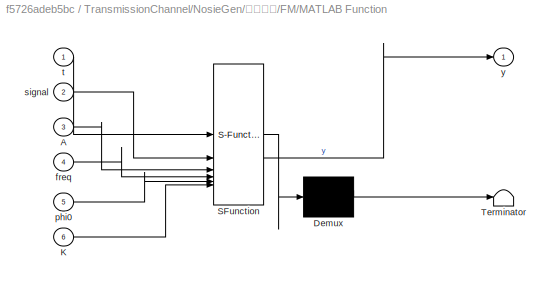
BLOCK [SubSystem] TransmissionChannel/NosieGen/调制方式/FM/MATLAB Function
  ErrorFcn = Stateflow.Translate.translate
  LibrarySourceBlock = simulink/User-Defined\nFunctions/MATLAB Function
  PermitHierarchicalResolution = ExplicitOnly
  SFBlockType = MATLAB Function
  TreatAsAtomicUnit = on
BLOCK [Demux] TransmissionChannel/NosieGen/调制方式/FM/MATLAB Function/ Demux 
  Outputs = 1
BLOCK [S-Function] TransmissionChannel/NosieGen/调制方式/FM/MATLAB Function/ SFunction 
  EnableBusSupport = on
  FunctionName = sf_sfun
  PortCounts = [6 2]
  SFcnIsStateOwnerBlock = off
  SFunctionDeploymentMode = off
  Tag = Stateflow S-Function 5
BLOCK [Terminator] TransmissionChannel/NosieGen/调制方式/FM/MATLAB Function/ Terminator 
BLOCK [Inport] TransmissionChannel/NosieGen/调制方式/FM/MATLAB Function/A
  Port = 3
BLOCK [Inport] TransmissionChannel/NosieGen/调制方式/FM/MATLAB Function/K
  Port = 6
BLOCK [Inport] TransmissionChannel/NosieGen/调制方式/FM/MATLAB Function/freq
  Port = 4
BLOCK [Inport] TransmissionChannel/NosieGen/调制方式/FM/MATLAB Function/phi0
  Port = 5
BLOCK [Inport] TransmissionChannel/NosieGen/调制方式/FM/MATLAB Function/signal
  Port = 2
BLOCK [Inport] TransmissionChannel/NosieGen/调制方式/FM/MATLAB Function/t
BLOCK [Outport] TransmissionChannel/NosieGen/调制方式/FM/MATLAB Function/y
BLOCK [SubSystem] TransmissionChannel/NosieGen/调制方式/If Action Subsystem3
  TreatAsAtomicUnit = on
BLOCK [ActionPort] TransmissionChannel/NosieGen/调制方式/If Action Subsystem3/Action Port
  ActionPortLabel = default:
BLOCK [Inport] TransmissionChannel/NosieGen/调制方式/If Action Subsystem3/Jammer Source
BLOCK [Outport] TransmissionChannel/NosieGen/调制方式/If Action Subsystem3/Out1
BLOCK [SubSystem] TransmissionChannel/NosieGen/调制方式/If Action Subsystem4
  TreatAsAtomicUnit = on
BLOCK [Inport] TransmissionChannel/NosieGen/调制方式/If Action Subsystem4/AM_Signal
BLOCK [ActionPort] TransmissionChannel/NosieGen/调制方式/If Action Subsystem4/Action Port
  ActionPortLabel = case [ 1 ]:
BLOCK [Outport] TransmissionChannel/NosieGen/调制方式/If Action Subsystem4/Out1
BLOCK [SubSystem] TransmissionChannel/NosieGen/调制方式/If Action Subsystem5
  TreatAsAtomicUnit = on
BLOCK [ActionPort] TransmissionChannel/NosieGen/调制方式/If Action Subsystem5/Action Port
  ActionPortLabel = case [ 2 ]:
BLOCK [Outport] TransmissionChannel/NosieGen/调制方式/If Action Subsystem5/Out1
BLOCK [Inport] TransmissionChannel/NosieGen/调制方式/If Action Subsystem5/PM_Signal
BLOCK [SubSystem] TransmissionChannel/NosieGen/调制方式/If Action Subsystem6
  TreatAsAtomicUnit = on
BLOCK [ActionPort] TransmissionChannel/NosieGen/调制方式/If Action Subsystem6/Action Port
  ActionPortLabel = case [ 3 ]:
BLOCK [Inport] TransmissionChannel/NosieGen/调制方式/If Action Subsystem6/FM_Signal
BLOCK [Outport] TransmissionChannel/NosieGen/调制方式/If Action Subsystem6/Out1
BLOCK [Inport] TransmissionChannel/NosieGen/调制方式/In2
  NameLocation = right
  Port = 2
BLOCK [Inport] TransmissionChannel/NosieGen/调制方式/InputSignal
BLOCK [Merge] TransmissionChannel/NosieGen/调制方式/Merge1
  Inputs = 4
BLOCK [Outport] TransmissionChannel/NosieGen/调制方式/Out1
BLOCK [SubSystem] TransmissionChannel/NosieGen/调制方式/PM
BLOCK [Constant] TransmissionChannel/NosieGen/调制方式/PM/Constant
  Value = model.Parameters.NoiseGen.Modulator.PMA
BLOCK [Constant] TransmissionChannel/NosieGen/调制方式/PM/Constant1
  Value = model.Parameters.NoiseGen.Modulator.PMF
BLOCK [Constant] TransmissionChannel/NosieGen/调制方式/PM/Constant2
  Value = model.Parameters.NoiseGen.Modulator.PMPhi0
BLOCK [Constant] TransmissionChannel/NosieGen/调制方式/PM/Constant3
  Value = model.Parameters.NoiseGen.Modulator.PMK
BLOCK [DigitalClock] TransmissionChannel/NosieGen/调制方式/PM/Digital Clock
  SampleTime = model.Parameters.NoiseGen.NoiseTs
BLOCK [Inport] TransmissionChannel/NosieGen/调制方式/PM/InputSignal
BLOCK [SubSystem] TransmissionChannel/NosieGen/调制方式/PM/MATLAB Function
  ErrorFcn = Stateflow.Translate.translate
  LibrarySourceBlock = simulink/User-Defined\nFunctions/MATLAB Function
  PermitHierarchicalResolution = ExplicitOnly
  SFBlockType = MATLAB Function
  TreatAsAtomicUnit = on
BLOCK [Demux] TransmissionChannel/NosieGen/调制方式/PM/MATLAB Function/ Demux 
  Outputs = 1
BLOCK [S-Function] TransmissionChannel/NosieGen/调制方式/PM/MATLAB Function/ SFunction 
  EnableBusSupport = on
  FunctionName = sf_sfun
  PortCounts = [6 2]
  SFcnIsStateOwnerBlock = off
  SFunctionDeploymentMode = off
  Tag = Stateflow S-Function 10
BLOCK [Terminator] TransmissionChannel/NosieGen/调制方式/PM/MATLAB Function/ Terminator 
BLOCK [Inport] TransmissionChannel/NosieGen/调制方式/PM/MATLAB Function/A
  Port = 3
BLOCK [Inport] TransmissionChannel/NosieGen/调制方式/PM/MATLAB Function/K
  Port = 5
BLOCK [Inport] TransmissionChannel/NosieGen/调制方式/PM/MATLAB Function/freq
  Port = 4
BLOCK [Inport] TransmissionChannel/NosieGen/调制方式/PM/MATLAB Function/phi0
  Port = 6
BLOCK [Inport] TransmissionChannel/NosieGen/调制方式/PM/MATLAB Function/signal
  Port = 2
BLOCK [Inport] TransmissionChannel/NosieGen/调制方式/PM/MATLAB Function/t
BLOCK [Outport] TransmissionChannel/NosieGen/调制方式/PM/MATLAB Function/y
BLOCK [Outport] TransmissionChannel/NosieGen/调制方式/PM/PM_Signal
BLOCK [SwitchCase] TransmissionChannel/NosieGen/调制方式/Switch Case1
  CaseConditions = {1,2,3}
BLOCK [Constant] TransmissionChannel/NosieGen/调制方式控制位
  NameLocation = right
  SampleTime = Inf
  Value = model.Parameters.NoiseGen.Control.Modulator
BLOCK [Math] TransmissionChannel/Power1
  NameLocation = top
  Operator = magnitude^2
BLOCK [Outport] TransmissionChannel/RESignal
BLOCK [Scope] TransmissionChannel/Scope1
  Floating = off
  NameLocation = top
  NumInputPorts = 1
  ScopeSpecificationString = Simulink.scopes.TimeScopeBlockCfg('CurrentConfiguration', extmgr.ConfigurationSet(extmgr.Configuration('Core','General UI',true),extmgr.Configuration('Core','Source UI',true),extmgr.Configuration('Sources','WiredSimulink',true,'DataLoggingVariableName','ScopeData1'),extmgr.Configuration('Visuals','Time Domain',true,'SerializedDisplays',{struct('MinYLimReal','541749963.40758','MaxYLimReal','7120610...<+1503ch>
BLOCK [Inport] TransmissionChannel/TRSignal
BLOCK [ToWorkspace] TransmissionChannel/To Workspace
  FixptAsFi = on
  MaxDataPoints = inf
  SampleTime = -1
  SaveFormat = Timeseries
  VariableName = NoisePowerEstimation
ANNOTATION REsystem: 接收端解码
ANNOTATION REsystem: 注意此处的延时设置，使得RS解码对齐信源部分，并在后续的码元比较时舍弃前三个编码周期(帧周期)的比特位
ANNOTATION TRsystem: 功率估计部分
ANNOTATION TRsystem: 加入了RS编码的16QAM调制，三路输出分别为基带码元的bit序列、经16QAM调制后信号的实部和虚部
ANNOTATION TRsystem/跳频和频谱搬移: 产生跳频序列，并生成基带跳频，跳频间隔是1MHz,跳频范围是[0.5MHz,7.5MHz]
ANNOTATION TRsystem/跳频和频谱搬移: 本地载波 ; 1MHz
ANNOTATION TRsystem/跳频和频谱搬移: 跳频基带信号
ANNOTATION TRsystem/跳频和频谱搬移: 载波
ANNOTATION TransmissionChannel: 功率估计部分
ANNOTATION TransmissionChannel/NosieGen: 干扰方式
ANNOTATION TransmissionChannel/NosieGen: 干扰方式模块功能： 由调制方式控制位来控制调制方式，控制位变化范围是[0-4] 控制位==0的时候，调制方式模块不工作 控制位==1的时候，是线性跳频干扰 控制位==2的时候，是步进跳频干扰 控制位不在上面集合范围的时候，警告
ANNOTATION TransmissionChannel/NosieGen: 干扰源
ANNOTATION TransmissionChannel/NosieGen: 干扰源模块功能： 由干扰源控制位来控制干扰源的波形，控制变换范围是[1-3] 控制位==1的时候，输出高斯白噪声 控制位==2的时候，输出随机二元码调制噪声 控制位==3的时候，输出正弦波 控制位不在上面的集合的时候，没有输出
ANNOTATION TransmissionChannel/NosieGen: 调制方式
ANNOTATION TransmissionChannel/NosieGen: 调制方式模块功能： 由调制方式控制位来控制调制方式，控制位变化范围是[0-4] 控制位==0的时候，调制方式模块不工作 控制位==1的时候，通过AM 控制位==2的时候，通过PM 控制位==3的时候，通过FM 控制位==4的时候，通过增益15 控制位不在上面集合范围的时候，警告
ANNOTATION TransmissionChannel/NosieGen/干扰方式/ChirpBasebandSignalGenerate: 线性调频模块：线性调频公式(y=exp(2*pi*(fmin*t+0.5*k_chirp*t^2))) 输入参数： 1.fmin,为线性调频信号的起始频率 2.fmax为线性调频信号的终止频率 3.T_chirp为线性调频信号的调频时间 斜率k_sweep = (f_min-f_max)/T_chirp
ANNOTATION TransmissionChannel/NosieGen/干扰方式/ChirpBasebandSignalGenerate: 线性调频模块
ANNOTATION TransmissionChannel/NosieGen/干扰方式/StepSweepSignalGenerate: 步进调频模块
ANNOTATION TransmissionChannel/NosieGen/干扰源/PN MSK Noise: MSK模块： MSK的公式: y = exp(2*pi*fc*t+pi*ak*t/(2Ts)+phi_k) 输入参数： 1. fc:为MSK的中心频率 2. ak:为MSK的第k码元值，数值[-1或者+1] 3. Ts:为MSK的码元周期 4. phi_k:为MSK的第k个码元的修正相位 5. phi_0:为MSK的初始相位
ANNOTATION TransmissionChannel/NosieGen/干扰源/PN MSK Noise: MSK模块
ANNOTATION TransmissionChannel/NosieGen/干扰源/Random Binary Noise: 改模块采用的是概率为贝努利分布的随机二进制数，随机二元码调制噪声的公式如下： Jt = Am*Jn*cos(2*pi*fj*t+phi0) 本质上是数字调相信号，相位翻转180°
ANNOTATION TransmissionChannel/NosieGen/干扰源/Random Binary Noise: 随机二进制调制噪声
LINE BitErrorJudgment/Bit Error Rate Calculation/Error Rate Calculation:1 -> BitErrorJudgment/Bit Error Rate Calculation/Out1:1
LINE BitErrorJudgment/Bit Error Rate Calculation/In1:1 -> BitErrorJudgment/Bit Error Rate Calculation/Integer to Bit Converter:1
LINE BitErrorJudgment/Bit Error Rate Calculation/In2:1 -> BitErrorJudgment/Bit Error Rate Calculation/Integer to Bit Converter1:1
LINE BitErrorJudgment/Bit Error Rate Calculation/Integer to Bit Converter1:1 -> BitErrorJudgment/Bit Error Rate Calculation/Error Rate Calculation:2
LINE BitErrorJudgment/Bit Error Rate Calculation/Integer to Bit Converter:1 -> BitErrorJudgment/Bit Error Rate Calculation/Error Rate Calculation:1
LINE BitErrorJudgment/Bit Error Rate Calculation:1 -> BitErrorJudgment/CodeBER:1
LINE BitErrorJudgment/REData:1 -> BitErrorJudgment/Bit Error Rate Calculation:2
LINE BitErrorJudgment/TRData:1 -> BitErrorJudgment/Bit Error Rate Calculation:1
NET BitErrorJudgment:1 -> Coded BER1:1, To Workspace2:1
LINE REsystem/Delay:1 -> REsystem/Integer-Output RS Decoder1:1
LINE REsystem/Integer-Output RS Decoder1:1 -> REsystem/REData:1
LINE REsystem/Integer-Output RS Decoder1:2 -> REsystem/Total Number of Corrected Errors:1
LINE REsystem/RESignal:1 -> REsystem/Raised Cosine Receive Filter:1
LINE REsystem/Raised Cosine Receive Filter:1 -> REsystem/Rectangular QAM Demodulator Baseband:1
LINE REsystem/Rectangular QAM Demodulator Baseband:1 -> REsystem/Delay:1
NET REsystem:1 -> BitErrorJudgment:1, To Workspace1:1
LINE TRsystem/Add1:1 -> TRsystem/Divide1:2
LINE TRsystem/Buffer7:1 -> TRsystem/Power1:1
LINE TRsystem/Conj1:1 -> TRsystem/Product:3
LINE TRsystem/Conj:1 -> TRsystem/Product:2
LINE TRsystem/Constant1:1 -> TRsystem/Add1:2
LINE TRsystem/Digital Clock1:1 -> TRsystem/Add1:1
NET TRsystem/Divide1:1 -> TRsystem/Scope1:1, TRsystem/To Workspace:1
LINE TRsystem/Integrator1:1 -> TRsystem/Divide1:1
LINE TRsystem/Power1:1 -> TRsystem/Integrator1:1
NET TRsystem/Product:1 -> TRsystem/Buffer7:1, TRsystem/TRSignal:1
LINE TRsystem/RS Encoder:1 -> TRsystem/Rectangular QAM Modulator Baseband:1
LINE TRsystem/Raised Cosine Transmit Filter:1 -> TRsystem/跳频和频谱搬移:1
NET TRsystem/Random Integer Generator:1 -> TRsystem/Output:1, TRsystem/RS Encoder:1
LINE TRsystem/Rectangular QAM Modulator Baseband:1 -> TRsystem/Raised Cosine Transmit Filter:1
LINE TRsystem/跳频和频谱搬移/Bit to Integer Converter:1 -> TRsystem/跳频和频谱搬移/M-FSK Modulator Baseband1:1
LINE TRsystem/跳频和频谱搬移/Constant:1 -> TRsystem/跳频和频谱搬移/MATLAB Function:2
LINE TRsystem/跳频和频谱搬移/Digital Clock:1 -> TRsystem/跳频和频谱搬移/MATLAB Function:1
NET TRsystem/跳频和频谱搬移/M-FSK Modulator Baseband1:1 -> TRsystem/跳频和频谱搬移/PN_Out:1, TRsystem/跳频和频谱搬移/Product:2
LINE TRsystem/跳频和频谱搬移/MATLAB Function:1 -> TRsystem/跳频和频谱搬移/Rate Transition1:1
LINE TRsystem/跳频和频谱搬移/Modulated Signal:1 -> TRsystem/跳频和频谱搬移/Product:1
LINE TRsystem/跳频和频谱搬移/PN Sequence Generator1:1 -> TRsystem/跳频和频谱搬移/Bit to Integer Converter:1
NET TRsystem/跳频和频谱搬移/Product:1 -> TRsystem/跳频和频谱搬移/RF Signal:1, TRsystem/跳频和频谱搬移/Spectrum Analyzer:1
NET TRsystem/跳频和频谱搬移/Rate Transition1:1 -> TRsystem/跳频和频谱搬移/PN_Out1:1, TRsystem/跳频和频谱搬移/Product:3
LINE TRsystem/跳频和频谱搬移:1 -> TRsystem/Product:1
LINE TRsystem/跳频和频谱搬移:2 -> TRsystem/Conj:1
LINE TRsystem/跳频和频谱搬移:3 -> TRsystem/Conj1:1
LINE TRsystem:1 -> TransmissionChannel:1
NET TRsystem:2 -> BitErrorJudgment:2, To Workspace:1
LINE TransmissionChannel/AWGN Channel:1 -> TransmissionChannel/RESignal:1
LINE TransmissionChannel/Add1:1 -> TransmissionChannel/Divide1:2
LINE TransmissionChannel/Add:1 -> TransmissionChannel/AWGN Channel:1
LINE TransmissionChannel/Buffer7:1 -> TransmissionChannel/Power1:1
LINE TransmissionChannel/Buffer:1 -> TransmissionChannel/Add:1
LINE TransmissionChannel/Constant1:1 -> TransmissionChannel/Add1:2
LINE TransmissionChannel/Digital Clock1:1 -> TransmissionChannel/Add1:1
NET TransmissionChannel/Divide1:1 -> TransmissionChannel/Scope1:1, TransmissionChannel/To Workspace:1
LINE TransmissionChannel/Integrator1:1 -> TransmissionChannel/Divide1:1
LINE TransmissionChannel/NosieGen/干扰方式/ChirpBasebandSignalGenerate/Chirp_Signal_Generation:1 -> TransmissionChannel/NosieGen/干扰方式/ChirpBasebandSignalGenerate/ChirpSignalOfBaseband:1
LINE TransmissionChannel/NosieGen/干扰方式/ChirpBasebandSignalGenerate/Constant1:1 -> TransmissionChannel/NosieGen/干扰方式/ChirpBasebandSignalGenerate/Chirp_Signal_Generation:3
LINE TransmissionChannel/NosieGen/干扰方式/ChirpBasebandSignalGenerate/Constant2:1 -> TransmissionChannel/NosieGen/干扰方式/ChirpBasebandSignalGenerate/Chirp_Signal_Generation:4
LINE TransmissionChannel/NosieGen/干扰方式/ChirpBasebandSignalGenerate/Constant:1 -> TransmissionChannel/NosieGen/干扰方式/ChirpBasebandSignalGenerate/Chirp_Signal_Generation:2
LINE TransmissionChannel/NosieGen/干扰方式/ChirpBasebandSignalGenerate/Digital Clock:1 -> TransmissionChannel/NosieGen/干扰方式/ChirpBasebandSignalGenerate/Chirp_Signal_Generation:1
LINE TransmissionChannel/NosieGen/干扰方式/ChirpBasebandSignalGenerate/Frequency_Check/ChirpSignal:1 -> TransmissionChannel/NosieGen/干扰方式/ChirpBasebandSignalGenerate/Frequency_Check/Phase Extractor:1
LINE TransmissionChannel/NosieGen/干扰方式/ChirpBasebandSignalGenerate/Frequency_Check/Derivative:1 -> TransmissionChannel/NosieGen/干扰方式/ChirpBasebandSignalGenerate/Frequency_Check/FrequencyConversionLine:1
LINE TransmissionChannel/NosieGen/干扰方式/ChirpBasebandSignalGenerate/Frequency_Check/Phase Extractor:1 -> TransmissionChannel/NosieGen/干扰方式/ChirpBasebandSignalGenerate/Frequency_Check/Derivative:1
LINE TransmissionChannel/NosieGen/干扰方式/ChirpBasebandSignalGenerate:1 -> TransmissionChannel/NosieGen/干扰方式/Switch Case Action Subsystem:1
LINE TransmissionChannel/NosieGen/干扰方式/If Action Subsystem7/StepSweepSignal:1 -> TransmissionChannel/NosieGen/干扰方式/If Action Subsystem7/Out1:1
LINE TransmissionChannel/NosieGen/干扰方式/If Action Subsystem7:1 -> TransmissionChannel/NosieGen/干扰方式/Merge2:2
LINE TransmissionChannel/NosieGen/干扰方式/If Action Subsystem8/Constant1:1 -> TransmissionChannel/NosieGen/干扰方式/If Action Subsystem8/Real-Imag to Complex:2
LINE TransmissionChannel/NosieGen/干扰方式/If Action Subsystem8/Constant:1 -> TransmissionChannel/NosieGen/干扰方式/If Action Subsystem8/Real-Imag to Complex:1
LINE TransmissionChannel/NosieGen/干扰方式/If Action Subsystem8/Real-Imag to Complex:1 -> TransmissionChannel/NosieGen/干扰方式/If Action Subsystem8/Out1:1
LINE TransmissionChannel/NosieGen/干扰方式/If Action Subsystem8:1 -> TransmissionChannel/NosieGen/干扰方式/Merge2:3
LINE TransmissionChannel/NosieGen/干扰方式/If Action Subsystem9/Constant1:1 -> TransmissionChannel/NosieGen/干扰方式/If Action Subsystem9/Real-Imag to Complex:2
LINE TransmissionChannel/NosieGen/干扰方式/If Action Subsystem9/Constant:1 -> TransmissionChannel/NosieGen/干扰方式/If Action Subsystem9/Real-Imag to Complex:1
LINE TransmissionChannel/NosieGen/干扰方式/If Action Subsystem9/Real-Imag to Complex:1 -> TransmissionChannel/NosieGen/干扰方式/If Action Subsystem9/Out1:1
LINE TransmissionChannel/NosieGen/干扰方式/If Action Subsystem9:1 -> TransmissionChannel/NosieGen/干扰方式/Merge2:4
LINE TransmissionChannel/NosieGen/干扰方式/In1:1 -> TransmissionChannel/NosieGen/干扰方式/Product:1
LINE TransmissionChannel/NosieGen/干扰方式/In2:1 -> TransmissionChannel/NosieGen/干扰方式/Switch Case2:1
LINE TransmissionChannel/NosieGen/干扰方式/Merge2:1 -> TransmissionChannel/NosieGen/干扰方式/Product:2
LINE TransmissionChannel/NosieGen/干扰方式/Product:1 -> TransmissionChannel/NosieGen/干扰方式/Out1:1
LINE TransmissionChannel/NosieGen/干扰方式/StepSweepSignalGenerate/Constant1:1 -> TransmissionChannel/NosieGen/干扰方式/StepSweepSignalGenerate/StepSweep_Signal:2
LINE TransmissionChannel/NosieGen/干扰方式/StepSweepSignalGenerate/Constant2:1 -> TransmissionChannel/NosieGen/干扰方式/StepSweepSignalGenerate/StepSweep_Signal:3
LINE TransmissionChannel/NosieGen/干扰方式/StepSweepSignalGenerate/Constant3:1 -> TransmissionChannel/NosieGen/干扰方式/StepSweepSignalGenerate/StepSweep_Signal:4
LINE TransmissionChannel/NosieGen/干扰方式/StepSweepSignalGenerate/Constant4:1 -> TransmissionChannel/NosieGen/干扰方式/StepSweepSignalGenerate/StepSweep_Signal:5
LINE TransmissionChannel/NosieGen/干扰方式/StepSweepSignalGenerate/Constant:1 -> TransmissionChannel/NosieGen/干扰方式/StepSweepSignalGenerate/StepSweep_Signal:6
LINE TransmissionChannel/NosieGen/干扰方式/StepSweepSignalGenerate/Digital Clock:1 -> TransmissionChannel/NosieGen/干扰方式/StepSweepSignalGenerate/StepSweep_Signal:1
LINE TransmissionChannel/NosieGen/干扰方式/StepSweepSignalGenerate/StepSweep_Signal:1 -> TransmissionChannel/NosieGen/干扰方式/StepSweepSignalGenerate/StepSweepSignalOfBaseband:1
LINE TransmissionChannel/NosieGen/干扰方式/StepSweepSignalGenerate:1 -> TransmissionChannel/NosieGen/干扰方式/If Action Subsystem7:1
LINE TransmissionChannel/NosieGen/干扰方式/Switch Case Action Subsystem/ChirpSignalOfBaseband:1 -> TransmissionChannel/NosieGen/干扰方式/Switch Case Action Subsystem/Out1:1
LINE TransmissionChannel/NosieGen/干扰方式/Switch Case Action Subsystem:1 -> TransmissionChannel/NosieGen/干扰方式/Merge2:1
LINE TransmissionChannel/NosieGen/干扰方式/Switch Case2:1 -> TransmissionChannel/NosieGen/干扰方式/Switch Case Action Subsystem:ifaction
LINE TransmissionChannel/NosieGen/干扰方式/Switch Case2:2 -> TransmissionChannel/NosieGen/干扰方式/If Action Subsystem7:ifaction
LINE TransmissionChannel/NosieGen/干扰方式/Switch Case2:3 -> TransmissionChannel/NosieGen/干扰方式/If Action Subsystem8:ifaction
LINE TransmissionChannel/NosieGen/干扰方式/Switch Case2:4 -> TransmissionChannel/NosieGen/干扰方式/If Action Subsystem9:ifaction
NET TransmissionChannel/NosieGen/干扰方式:1 -> TransmissionChannel/NosieGen/Jamming_Signal_Output:1, TransmissionChannel/NosieGen/Spectrum Analyzer:1, TransmissionChannel/NosieGen/To Workspace:1
LINE TransmissionChannel/NosieGen/干扰方式控制位:1 -> TransmissionChannel/NosieGen/干扰方式:2
LINE TransmissionChannel/NosieGen/干扰源/Band-Limited White Noise:1 -> TransmissionChannel/NosieGen/干扰源/If Action Subsystem:1
LINE TransmissionChannel/NosieGen/干扰源/Constant:1 -> TransmissionChannel/NosieGen/干扰源/If Action Subsystem5:1
LINE TransmissionChannel/NosieGen/干扰源/If Action Subsystem/In1:1 -> TransmissionChannel/NosieGen/干扰源/If Action Subsystem/Out1:1
LINE TransmissionChannel/NosieGen/干扰源/If Action Subsystem1/Binary_Random_Signal:1 -> TransmissionChannel/NosieGen/干扰源/If Action Subsystem1/Out1:1
LINE TransmissionChannel/NosieGen/干扰源/If Action Subsystem1:1 -> TransmissionChannel/NosieGen/干扰源/Merge:3
LINE TransmissionChannel/NosieGen/干扰源/If Action Subsystem2/monophonic:1 -> TransmissionChannel/NosieGen/干扰源/If Action Subsystem2/Out1:1
LINE TransmissionChannel/NosieGen/干扰源/If Action Subsystem2:1 -> TransmissionChannel/NosieGen/干扰源/Merge:4
LINE TransmissionChannel/NosieGen/干扰源/If Action Subsystem3/Input:1 -> TransmissionChannel/NosieGen/干扰源/If Action Subsystem3/Out1:1
LINE TransmissionChannel/NosieGen/干扰源/If Action Subsystem3:1 -> TransmissionChannel/NosieGen/干扰源/Merge:5
LINE TransmissionChannel/NosieGen/干扰源/If Action Subsystem4/Input:1 -> TransmissionChannel/NosieGen/干扰源/If Action Subsystem4/Out1:1
LINE TransmissionChannel/NosieGen/干扰源/If Action Subsystem4:1 -> TransmissionChannel/NosieGen/干扰源/Merge:6
LINE TransmissionChannel/NosieGen/干扰源/If Action Subsystem5/In1:1 -> TransmissionChannel/NosieGen/干扰源/If Action Subsystem5/Out1:1
LINE TransmissionChannel/NosieGen/干扰源/If Action Subsystem5:1 -> TransmissionChannel/NosieGen/干扰源/Merge:1
LINE TransmissionChannel/NosieGen/干扰源/If Action Subsystem:1 -> TransmissionChannel/NosieGen/干扰源/Merge:2
LINE TransmissionChannel/NosieGen/干扰源/In1:1 -> TransmissionChannel/NosieGen/干扰源/Switch Case:1
LINE TransmissionChannel/NosieGen/干扰源/Merge:1 -> TransmissionChannel/NosieGen/干扰源/Out1:1
LINE TransmissionChannel/NosieGen/干扰源/Monophonic Sine Noise/Constant1:1 -> TransmissionChannel/NosieGen/干扰源/Monophonic Sine Noise/Monophonic_Generate:3
LINE TransmissionChannel/NosieGen/干扰源/Monophonic Sine Noise/Constant2:1 -> TransmissionChannel/NosieGen/干扰源/Monophonic Sine Noise/Monophonic_Generate:2
LINE TransmissionChannel/NosieGen/干扰源/Monophonic Sine Noise/Constant:1 -> TransmissionChannel/NosieGen/干扰源/Monophonic Sine Noise/Monophonic_Generate:4
LINE TransmissionChannel/NosieGen/干扰源/Monophonic Sine Noise/Digital Clock:1 -> TransmissionChannel/NosieGen/干扰源/Monophonic Sine Noise/Monophonic_Generate:1
LINE TransmissionChannel/NosieGen/干扰源/Monophonic Sine Noise/Monophonic_Generate:1 -> TransmissionChannel/NosieGen/干扰源/Monophonic Sine Noise/monophonic:1
LINE TransmissionChannel/NosieGen/干扰源/Monophonic Sine Noise:1 -> TransmissionChannel/NosieGen/干扰源/If Action Subsystem2:1
LINE TransmissionChannel/NosieGen/干扰源/PN MSK Noise/Buffer:1 -> TransmissionChannel/NosieGen/干扰源/PN MSK Noise/Random Binary Modulation:1
LINE TransmissionChannel/NosieGen/干扰源/PN MSK Noise/Complex to Real-Imag:1 -> TransmissionChannel/NosieGen/干扰源/PN MSK Noise/MSKSignal:1
LINE TransmissionChannel/NosieGen/干扰源/PN MSK Noise/Constant:1 -> TransmissionChannel/NosieGen/干扰源/PN MSK Noise/Random Binary Modulation:3
LINE TransmissionChannel/NosieGen/干扰源/PN MSK Noise/Digital Clock:1 -> TransmissionChannel/NosieGen/干扰源/PN MSK Noise/Random Binary Modulation:2
LINE TransmissionChannel/NosieGen/干扰源/PN MSK Noise/MSK Modulator Baseband:1 -> TransmissionChannel/NosieGen/干扰源/PN MSK Noise/Buffer:1
LINE TransmissionChannel/NosieGen/干扰源/PN MSK Noise/PN Sequence Generator:1 -> TransmissionChannel/NosieGen/干扰源/PN MSK Noise/Unipolar to Bipolar Converter1:1
LINE TransmissionChannel/NosieGen/干扰源/PN MSK Noise/Random Binary Modulation:1 -> TransmissionChannel/NosieGen/干扰源/PN MSK Noise/Complex to Real-Imag:1
LINE TransmissionChannel/NosieGen/干扰源/PN MSK Noise/Unipolar to Bipolar Converter1:1 -> TransmissionChannel/NosieGen/干扰源/PN MSK Noise/MSK Modulator Baseband:1
LINE TransmissionChannel/NosieGen/干扰源/PN MSK Noise:1 -> TransmissionChannel/NosieGen/干扰源/If Action Subsystem3:1
LINE TransmissionChannel/NosieGen/干扰源/Random Binary Noise/Bernoulli Binary Generator:1 -> TransmissionChannel/NosieGen/干扰源/Random Binary Noise/Unipolar to bipolar:1
LINE TransmissionChannel/NosieGen/干扰源/Random Binary Noise/Constant1:1 -> TransmissionChannel/NosieGen/干扰源/Random Binary Noise/Random Binary Modulation:4
LINE TransmissionChannel/NosieGen/干扰源/Random Binary Noise/Constant2:1 -> TransmissionChannel/NosieGen/干扰源/Random Binary Noise/Random Binary Modulation:5
LINE TransmissionChannel/NosieGen/干扰源/Random Binary Noise/Constant:1 -> TransmissionChannel/NosieGen/干扰源/Random Binary Noise/Random Binary Modulation:3
LINE TransmissionChannel/NosieGen/干扰源/Random Binary Noise/Digital Clock:1 -> TransmissionChannel/NosieGen/干扰源/Random Binary Noise/Random Binary Modulation:2
LINE TransmissionChannel/NosieGen/干扰源/Random Binary Noise/Random Binary Modulation:1 -> TransmissionChannel/NosieGen/干扰源/Random Binary Noise/Jt:1
LINE TransmissionChannel/NosieGen/干扰源/Random Binary Noise/Unipolar to bipolar:1 -> TransmissionChannel/NosieGen/干扰源/Random Binary Noise/Random Binary Modulation:1
LINE TransmissionChannel/NosieGen/干扰源/Random Binary Noise:1 -> TransmissionChannel/NosieGen/干扰源/If Action Subsystem1:1
LINE TransmissionChannel/NosieGen/干扰源/Subsystem/Band-Limited White Noise:1 -> TransmissionChannel/NosieGen/干扰源/Subsystem/Filter:1
LINE TransmissionChannel/NosieGen/干扰源/Subsystem/Filter:1 -> TransmissionChannel/NosieGen/干扰源/Subsystem/Input:1
LINE TransmissionChannel/NosieGen/干扰源/Subsystem:1 -> TransmissionChannel/NosieGen/干扰源/If Action Subsystem4:1
LINE TransmissionChannel/NosieGen/干扰源/Switch Case:1 -> TransmissionChannel/NosieGen/干扰源/If Action Subsystem5:ifaction
LINE TransmissionChannel/NosieGen/干扰源/Switch Case:2 -> TransmissionChannel/NosieGen/干扰源/If Action Subsystem:ifaction
LINE TransmissionChannel/NosieGen/干扰源/Switch Case:3 -> TransmissionChannel/NosieGen/干扰源/If Action Subsystem1:ifaction
LINE TransmissionChannel/NosieGen/干扰源/Switch Case:4 -> TransmissionChannel/NosieGen/干扰源/If Action Subsystem2:ifaction
LINE TransmissionChannel/NosieGen/干扰源/Switch Case:5 -> TransmissionChannel/NosieGen/干扰源/If Action Subsystem3:ifaction
LINE TransmissionChannel/NosieGen/干扰源/Switch Case:6 -> TransmissionChannel/NosieGen/干扰源/If Action Subsystem4:ifaction
LINE TransmissionChannel/NosieGen/干扰源:1 -> TransmissionChannel/NosieGen/调制方式:1
LINE TransmissionChannel/NosieGen/干扰源控制位:1 -> TransmissionChannel/NosieGen/干扰源:1
LINE TransmissionChannel/NosieGen/调制方式/AM/AM_Carrier:1 -> TransmissionChannel/NosieGen/调制方式/AM/Product:2
LINE TransmissionChannel/NosieGen/调制方式/AM/Constant1:1 -> TransmissionChannel/NosieGen/调制方式/AM/AM_Carrier:3
LINE TransmissionChannel/NosieGen/调制方式/AM/Constant2:1 -> TransmissionChannel/NosieGen/调制方式/AM/AM_Carrier:4
LINE TransmissionChannel/NosieGen/调制方式/AM/Constant:1 -> TransmissionChannel/NosieGen/调制方式/AM/AM_Carrier:2
LINE TransmissionChannel/NosieGen/调制方式/AM/Digital Clock:1 -> TransmissionChannel/NosieGen/调制方式/AM/AM_Carrier:1
LINE TransmissionChannel/NosieGen/调制方式/AM/Jammer Source:1 -> TransmissionChannel/NosieGen/调制方式/AM/Product:1
LINE TransmissionChannel/NosieGen/调制方式/AM/Product:1 -> TransmissionChannel/NosieGen/调制方式/AM/AM_Signal:1
LINE TransmissionChannel/NosieGen/调制方式/AM:1 -> TransmissionChannel/NosieGen/调制方式/If Action Subsystem4:1
LINE TransmissionChannel/NosieGen/调制方式/FM/Constant1:1 -> TransmissionChannel/NosieGen/调制方式/FM/MATLAB Function:4
LINE TransmissionChannel/NosieGen/调制方式/FM/Constant2:1 -> TransmissionChannel/NosieGen/调制方式/FM/MATLAB Function:5
LINE TransmissionChannel/NosieGen/调制方式/FM/Constant3:1 -> TransmissionChannel/NosieGen/调制方式/FM/MATLAB Function:6
LINE TransmissionChannel/NosieGen/调制方式/FM/Constant:1 -> TransmissionChannel/NosieGen/调制方式/FM/MATLAB Function:3
LINE TransmissionChannel/NosieGen/调制方式/FM/Digital Clock:1 -> TransmissionChannel/NosieGen/调制方式/FM/MATLAB Function:1
LINE TransmissionChannel/NosieGen/调制方式/FM/InputSignal:1 -> TransmissionChannel/NosieGen/调制方式/FM/MATLAB Function:2
LINE TransmissionChannel/NosieGen/调制方式/FM/MATLAB Function:1 -> TransmissionChannel/NosieGen/调制方式/FM/FM_Signal:1
LINE TransmissionChannel/NosieGen/调制方式/FM:1 -> TransmissionChannel/NosieGen/调制方式/If Action Subsystem6:1
LINE TransmissionChannel/NosieGen/调制方式/If Action Subsystem3/Jammer Source:1 -> TransmissionChannel/NosieGen/调制方式/If Action Subsystem3/Out1:1
LINE TransmissionChannel/NosieGen/调制方式/If Action Subsystem3:1 -> TransmissionChannel/NosieGen/调制方式/Merge1:4
LINE TransmissionChannel/NosieGen/调制方式/If Action Subsystem4/AM_Signal:1 -> TransmissionChannel/NosieGen/调制方式/If Action Subsystem4/Out1:1
LINE TransmissionChannel/NosieGen/调制方式/If Action Subsystem4:1 -> TransmissionChannel/NosieGen/调制方式/Merge1:1
LINE TransmissionChannel/NosieGen/调制方式/If Action Subsystem5/PM_Signal:1 -> TransmissionChannel/NosieGen/调制方式/If Action Subsystem5/Out1:1
LINE TransmissionChannel/NosieGen/调制方式/If Action Subsystem5:1 -> TransmissionChannel/NosieGen/调制方式/Merge1:2
LINE TransmissionChannel/NosieGen/调制方式/If Action Subsystem6/FM_Signal:1 -> TransmissionChannel/NosieGen/调制方式/If Action Subsystem6/Out1:1
LINE TransmissionChannel/NosieGen/调制方式/If Action Subsystem6:1 -> TransmissionChannel/NosieGen/调制方式/Merge1:3
LINE TransmissionChannel/NosieGen/调制方式/In2:1 -> TransmissionChannel/NosieGen/调制方式/Switch Case1:1
NET TransmissionChannel/NosieGen/调制方式/InputSignal:1 -> TransmissionChannel/NosieGen/调制方式/AM:1, TransmissionChannel/NosieGen/调制方式/FM:1, TransmissionChannel/NosieGen/调制方式/If Action Subsystem3:1, TransmissionChannel/NosieGen/调制方式/PM:1
LINE TransmissionChannel/NosieGen/调制方式/Merge1:1 -> TransmissionChannel/NosieGen/调制方式/Out1:1
LINE TransmissionChannel/NosieGen/调制方式/PM/Constant1:1 -> TransmissionChannel/NosieGen/调制方式/PM/MATLAB Function:4
LINE TransmissionChannel/NosieGen/调制方式/PM/Constant2:1 -> TransmissionChannel/NosieGen/调制方式/PM/MATLAB Function:6
LINE TransmissionChannel/NosieGen/调制方式/PM/Constant3:1 -> TransmissionChannel/NosieGen/调制方式/PM/MATLAB Function:5
LINE TransmissionChannel/NosieGen/调制方式/PM/Constant:1 -> TransmissionChannel/NosieGen/调制方式/PM/MATLAB Function:3
LINE TransmissionChannel/NosieGen/调制方式/PM/Digital Clock:1 -> TransmissionChannel/NosieGen/调制方式/PM/MATLAB Function:1
LINE TransmissionChannel/NosieGen/调制方式/PM/InputSignal:1 -> TransmissionChannel/NosieGen/调制方式/PM/MATLAB Function:2
LINE TransmissionChannel/NosieGen/调制方式/PM/MATLAB Function:1 -> TransmissionChannel/NosieGen/调制方式/PM/PM_Signal:1
LINE TransmissionChannel/NosieGen/调制方式/PM:1 -> TransmissionChannel/NosieGen/调制方式/If Action Subsystem5:1
LINE TransmissionChannel/NosieGen/调制方式/Switch Case1:1 -> TransmissionChannel/NosieGen/调制方式/If Action Subsystem4:ifaction
LINE TransmissionChannel/NosieGen/调制方式/Switch Case1:2 -> TransmissionChannel/NosieGen/调制方式/If Action Subsystem5:ifaction
LINE TransmissionChannel/NosieGen/调制方式/Switch Case1:3 -> TransmissionChannel/NosieGen/调制方式/If Action Subsystem6:ifaction
LINE TransmissionChannel/NosieGen/调制方式/Switch Case1:4 -> TransmissionChannel/NosieGen/调制方式/If Action Subsystem3:ifaction
LINE TransmissionChannel/NosieGen/调制方式:1 -> TransmissionChannel/NosieGen/干扰方式:1
LINE TransmissionChannel/NosieGen/调制方式控制位:1 -> TransmissionChannel/NosieGen/调制方式:2
NET TransmissionChannel/NosieGen:1 -> TransmissionChannel/Buffer7:1, TransmissionChannel/Buffer:1
LINE TransmissionChannel/Power1:1 -> TransmissionChannel/Integrator1:1
LINE TransmissionChannel/TRSignal:1 -> TransmissionChannel/Add:2
NET TransmissionChannel:1 -> REsystem:1, To Workspace3:1
note: NET lines group one-source signal fan-out (src -> all destinations, sorted); 1:1 wires keep LINE
CHART TransmissionChannel/NosieGen/干扰源/PN MSK Noise/Random Binary Modulation states=1 transitions=1
  STATE_LABEL 'eML_blk_kernel()'
  STATE_LABEL 'SCRIPT:\nfunction MSKSignal = fcn(cita_k,t, freq)\n    MSKSignal = cita_k * cos(2*pi*freq*t);\nend\n'
CHART TransmissionChannel/NosieGen/调制方式/PM/MATLAB Function states=1 transitions=1
  STATE_LABEL 'eML_blk_kernel()'
  STATE_LABEL 'SCRIPT:\nfunction y = PM(t, signal, A, freq, K, phi0)\n   y = A*cos(2*pi*freq*t+K*signal+phi0) ;\nend\n'
CHART TRsystem/跳频和频谱搬移/MATLAB Function states=1 transitions=1
  STATE_LABEL 'eML_blk_kernel()'
  STATE_LABEL 'SCRIPT:\nfunction y = fcn(t,fc)\n%     fs = 40e6;\n%     Ts = 1/fs;\n%     t = 0:Ts:0.002;\n%     fc = 1e6;\n    y = exp(1i*2*pi*fc*t);\n\nend\n'
CHART TransmissionChannel/NosieGen/干扰方式/ChirpBasebandSignalGenerate/Chirp_Signal_Generation states=1 transitions=1
  STATE_LABEL 'eML_blk_kernel()'
  STATE_LABEL 'SCRIPT:\nfunction y = ChirpSignal(t, f_chirp_min, T_chirp, k_chirp)\n    t = mod(t,T_chirp);\n    y = exp(1i*2*pi*(f_chirp_min*t+0.5*k_chirp*t^2));\nend\n'
CHART TransmissionChannel/NosieGen/干扰源/Monophonic Sine Noise/Monophonic_Generate states=1 transitions=1
  STATE_LABEL 'eML_blk_kernel()'
  STATE_LABEL 'SCRIPT:\nfunction monophonic = MonophonicGenerate(t, A, freq, phi0)\n    monophonic = A * sin(2*pi*freq*t+phi0);\nend\n'
CHART TransmissionChannel/NosieGen/调制方式/AM/AM_Carrier states=1 transitions=1
  STATE_LABEL 'eML_blk_kernel()'
  STATE_LABEL 'SCRIPT:\nfunction y = AM_Carrier(t, A, freq, phi0)\n    y = A*cos(2*pi*freq*t+phi0);\nend\n'
CHART TransmissionChannel/NosieGen/调制方式/FM/MATLAB Function states=1 transitions=1
  STATE_LABEL 'eML_blk_kernel()'
  STATE_LABEL 'SCRIPT:\nfunction y = FM(t, signal, A, freq, phi0, K)\n   y = A*cos(2*pi*(freq+K*signal)*t+phi0) ;\nend\n'
CHART TransmissionChannel/NosieGen/干扰源/Random Binary Noise/Random Binary Modulation states=1 transitions=1
  STATE_LABEL 'eML_blk_kernel()'
  STATE_LABEL 'SCRIPT:\nfunction Jt = fcn(Jn,t,A,freq,phi0)\n    Jt = A*Jn*cos(2*pi*freq*t+phi0);\nend\n'
CHART TransmissionChannel/NosieGen/干扰源/Random Binary Noise/Unipolar to bipolar states=1 transitions=1
  STATE_LABEL 'eML_blk_kernel()'
  STATE_LABEL 'SCRIPT:\nfunction Jn= fcn(u)\n    Jn = 2*u-1;\nend\n'
CHART TransmissionChannel/NosieGen/干扰方式/StepSweepSignalGenerate/StepSweep_Signal states=1 transitions=1
  STATE_LABEL 'eML_blk_kernel()'
  STATE_LABEL 'SCRIPT:\nfunction y  = StepSweep(t, f_stepSweep_min, T_stepSweep, delta_f_stepSweep, T_stepSweep_dwell, Ts, N_stepSweep)\n    a = mod(t,T_stepSweep)+Ts/10000;\n    b = fix(a/T_stepSweep_dwell);\n    if b == N_stepSweep\n        b = N_stepSweep - 1;\n    end\n    f = (f_stepSweep_min+b*delta_f_stepSweep);\n    y = exp(1i*2*pi*f*t);\nend\n'
CHART  states=0 transitions=0
CHART  states=0 transitions=0
CHART  states=0 transitions=0
CHART  states=0 transitions=0
CHART  states=0 transitions=0
CHART  states=0 transitions=0
CHART  states=0 transitions=0
CHART  states=0 transitions=0
CHART  states=0 transitions=0
CHART  states=0 transitions=0
